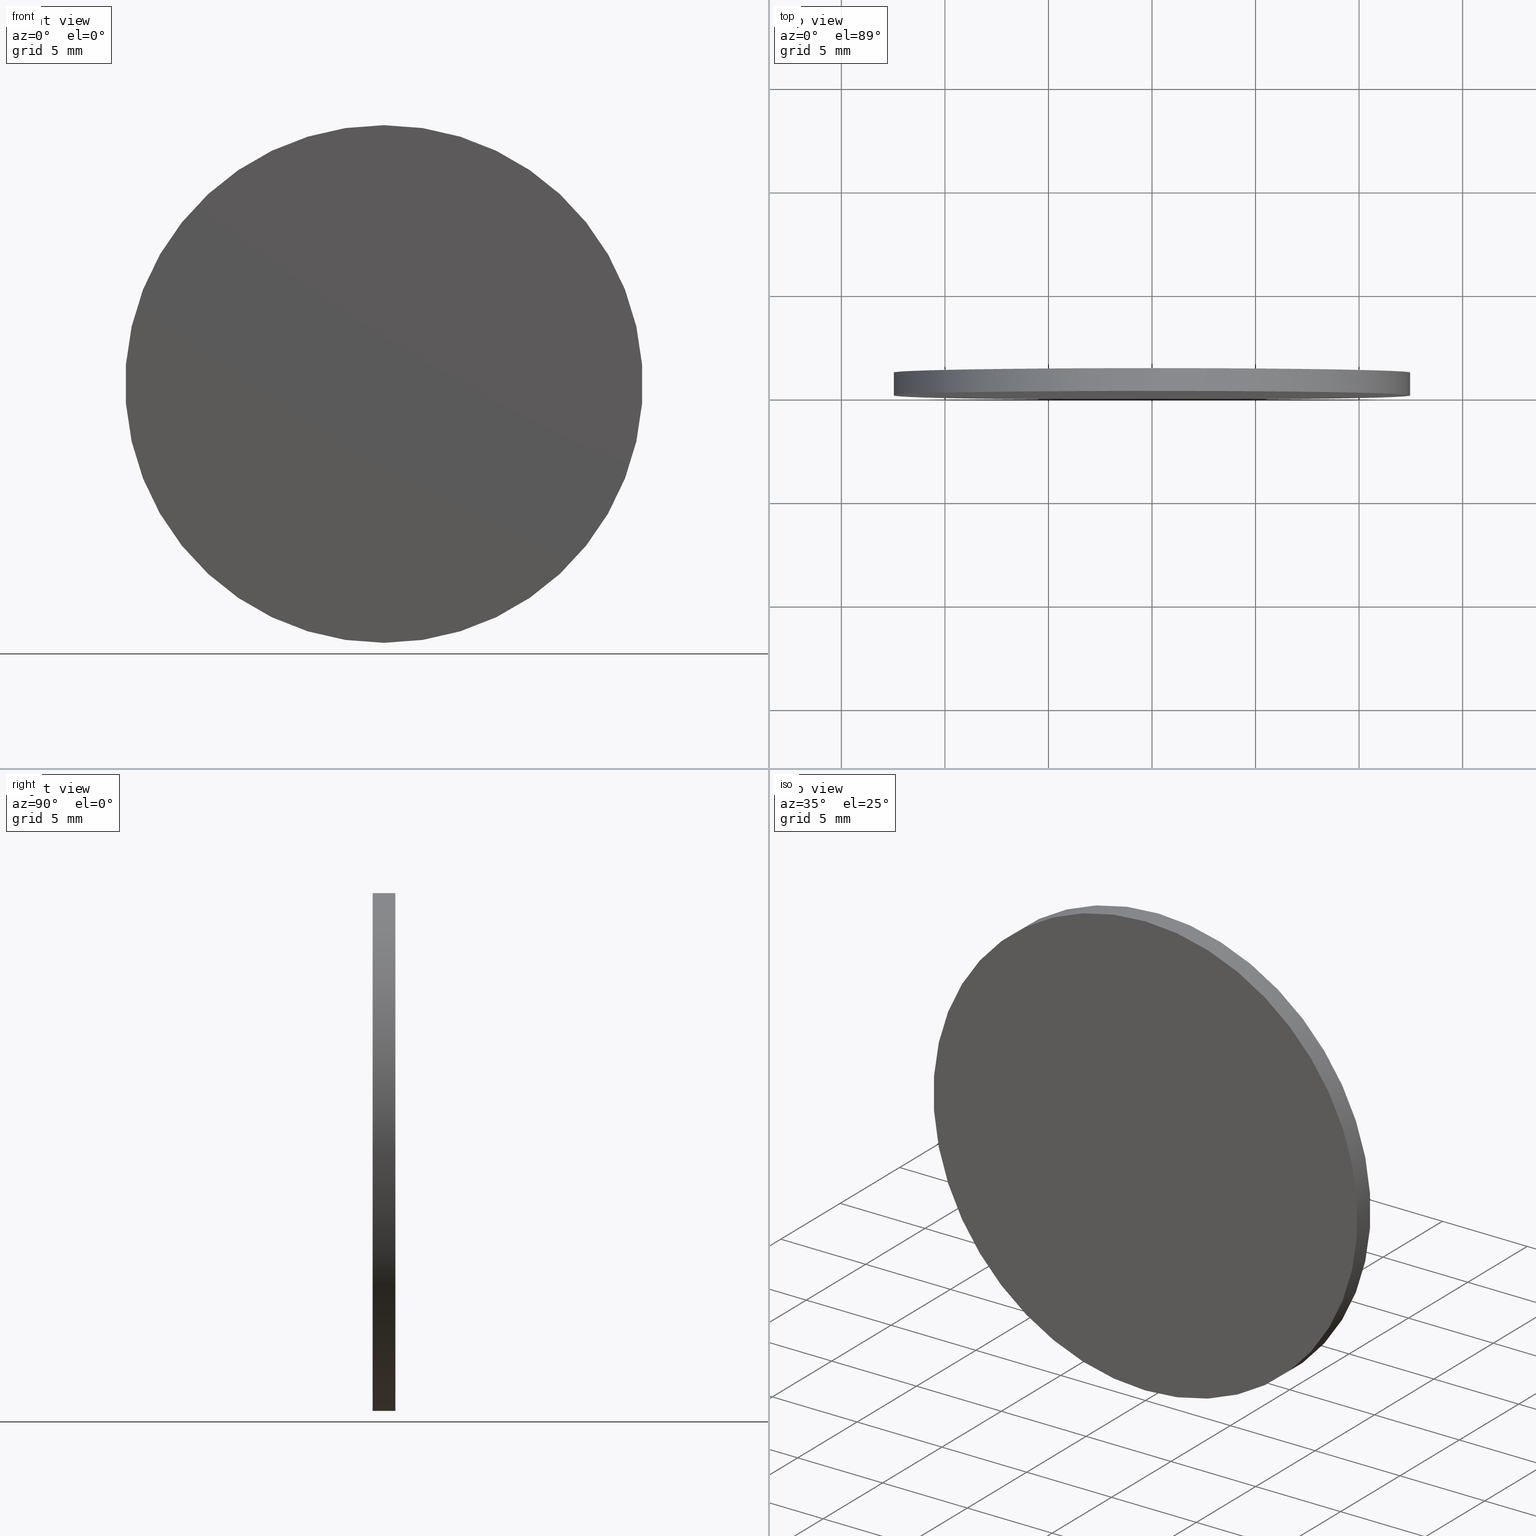
[diagram: canonical four-view strip — front | top / right | iso, engineering-drawing reading convention]
A machine part, canonical four-view strip (front | top / right | iso — engineering-drawing reading convention). The complete STEP part file that produces these views, byte-faithful:
ISO-10303-21;
HEADER;
FILE_DESCRIPTION (( 'STEP AP214' ),
    '1' );
FILE_NAME ('258502.STEP',
    '2019-08-06T08:49:14',
    ( 'user' ),
    ( '΢���й�' ),
    'SwSTEP 2.0',
    'SolidWorks 2016',
    '' );
FILE_SCHEMA (( 'AUTOMOTIVE_DESIGN' ));
ENDSEC;

DATA;
#1 = APPLICATION_CONTEXT ( 'automotive_design' ) ;
#2 = ORIENTED_EDGE ( 'NONE', *, *, #91, .F. ) ;
#3 = FACE_OUTER_BOUND ( 'NONE', #107, .T. ) ;
#4 = FACE_OUTER_BOUND ( 'NONE', #35, .T. ) ;
#5 = ADVANCED_BREP_SHAPE_REPRESENTATION ( '258502', ( #120, #77 ), #69 ) ;
#6 = DIRECTION ( 'NONE',  ( 0.0000000000000000000, 1.000000000000000000, 0.0000000000000000000 ) ) ;
#7 = CARTESIAN_POINT ( 'NONE',  ( 0.0000000000000000000, 1.100000000000000100, 0.0000000000000000000 ) ) ;
#8 = EDGE_CURVE ( 'NONE', #50, #49, #71, .T. ) ;
#9 = ORIENTED_EDGE ( 'NONE', *, *, #8, .F. ) ;
#10 = CARTESIAN_POINT ( 'NONE',  ( 0.0000000000000000000, 1.100000000000000100, -12.50000000000000000 ) ) ;
#11 = CARTESIAN_POINT ( 'NONE',  ( 0.0000000000000000000, 0.0000000000000000000, 0.0000000000000000000 ) ) ;
#12 =( LENGTH_UNIT ( ) NAMED_UNIT ( * ) SI_UNIT ( .MILLI., .METRE. ) );
#13 = DIRECTION ( 'NONE',  ( 0.0000000000000000000, 1.000000000000000000, 0.0000000000000000000 ) ) ;
#14 = PRODUCT_CONTEXT ( 'NONE', #67, 'mechanical' ) ;
#15 = EDGE_CURVE ( 'NONE', #39, #50, #122, .T. ) ;
#16 = PRODUCT ( '258502', '258502', '', ( #14 ) ) ;
#17 = PRESENTATION_STYLE_ASSIGNMENT (( #109 ) ) ;
#18 = CYLINDRICAL_SURFACE ( 'NONE', #63, 12.50000000000000000 ) ;
#19 = AXIS2_PLACEMENT_3D ( 'NONE', #93, #21, #84 ) ;
#20 = CLOSED_SHELL ( 'NONE', ( #76, #23, #117, #66 ) ) ;
#21 = DIRECTION ( 'NONE',  ( 0.0000000000000000000, 1.000000000000000000, 0.0000000000000000000 ) ) ;
#22 = DIRECTION ( 'NONE',  ( -0.0000000000000000000, -1.000000000000000000, -0.0000000000000000000 ) ) ;
#23 = ADVANCED_FACE ( 'NONE', ( #4 ), #83, .T. ) ;
#24 = CARTESIAN_POINT ( 'NONE',  ( 0.0000000000000000000, 0.0000000000000000000, 0.0000000000000000000 ) ) ;
#25 = DIRECTION ( 'NONE',  ( 0.0000000000000000000, 0.0000000000000000000, 1.000000000000000000 ) ) ;
#26 = PRODUCT_DEFINITION_FORMATION_WITH_SPECIFIED_SOURCE ( '�κ�', '', #16, .NOT_KNOWN. ) ;
#27 = STYLED_ITEM ( 'NONE', ( #17 ), #5 ) ;
#28 = CIRCLE ( 'NONE', #68, 12.50000000000000000 ) ;
#29 = ORIENTED_EDGE ( 'NONE', *, *, #15, .T. ) ;
#30 = AXIS2_PLACEMENT_3D ( 'NONE', #75, #44, #104 ) ;
#31 = LINE ( 'NONE', #10, #111 ) ;
#32 =( NAMED_UNIT ( * ) SI_UNIT ( $, .STERADIAN. ) SOLID_ANGLE_UNIT ( ) );
#33 = MECHANICAL_DESIGN_GEOMETRIC_PRESENTATION_REPRESENTATION (  '', ( #27 ), #99 ) ;
#34 = UNCERTAINTY_MEASURE_WITH_UNIT (LENGTH_MEASURE( 1.000000000000000100E-005 ), #48, 'distance_accuracy_value', 'NONE');
#35 = EDGE_LOOP ( 'NONE', ( #137, #2, #89, #116 ) ) ;
#36 = FILL_AREA_STYLE_COLOUR ( '', #100 ) ;
#37 = AXIS2_PLACEMENT_3D ( 'NONE', #11, #13, #129 ) ;
#38 =( NAMED_UNIT ( * ) SI_UNIT ( $, .STERADIAN. ) SOLID_ANGLE_UNIT ( ) );
#39 = VERTEX_POINT ( 'NONE', #95 ) ;
#40 = AXIS2_PLACEMENT_3D ( 'NONE', #87, #56, #118 ) ;
#41 = ORIENTED_EDGE ( 'NONE', *, *, #128, .T. ) ;
#42 =( NAMED_UNIT ( * ) PLANE_ANGLE_UNIT ( ) SI_UNIT ( $, .RADIAN. ) );
#43 = FILL_AREA_STYLE_COLOUR ( '', #108 ) ;
#44 = DIRECTION ( 'NONE',  ( 0.0000000000000000000, 1.000000000000000000, 0.0000000000000000000 ) ) ;
#45 = CARTESIAN_POINT ( 'NONE',  ( 1.530808498934191500E-015, 0.0000000000000000000, 12.50000000000000000 ) ) ;
#46 = PRESENTATION_LAYER_ASSIGNMENT (  '', '', ( #102 ) ) ;
#47 = ORIENTED_EDGE ( 'NONE', *, *, #8, .T. ) ;
#48 =( LENGTH_UNIT ( ) NAMED_UNIT ( * ) SI_UNIT ( .MILLI., .METRE. ) );
#49 = VERTEX_POINT ( 'NONE', #106 ) ;
#50 = VERTEX_POINT ( 'NONE', #45 ) ;
#51 = AXIS2_PLACEMENT_3D ( 'NONE', #115, #6, #73 ) ;
#52 = SHAPE_DEFINITION_REPRESENTATION ( #135, #5 ) ;
#53 = SURFACE_STYLE_USAGE ( .BOTH. , #127 ) ;
#54 = EDGE_CURVE ( 'NONE', #64, #49, #31, .T. ) ;
#55 = CARTESIAN_POINT ( 'NONE',  ( 0.0000000000000000000, 1.100000000000000100, -12.50000000000000000 ) ) ;
#56 = DIRECTION ( 'NONE',  ( -0.0000000000000000000, -1.000000000000000000, -0.0000000000000000000 ) ) ;
#57 = DIRECTION ( 'NONE',  ( 1.000000000000000000, 0.0000000000000000000, 0.0000000000000000000 ) ) ;
#58 = SURFACE_SIDE_STYLE ('',( #125 ) ) ;
#59 = ORIENTED_EDGE ( 'NONE', *, *, #128, .F. ) ;
#60 =( GEOMETRIC_REPRESENTATION_CONTEXT ( 3 ) GLOBAL_UNCERTAINTY_ASSIGNED_CONTEXT ( ( #70 ) ) GLOBAL_UNIT_ASSIGNED_CONTEXT ( ( #114, #42, #32 ) ) REPRESENTATION_CONTEXT ( 'NONE', 'WORKASPACE' ) );
#61 = FILL_AREA_STYLE ('',( #43 ) ) ;
#62 = DIRECTION ( 'NONE',  ( 0.0000000000000000000, 0.0000000000000000000, 1.000000000000000000 ) ) ;
#63 = AXIS2_PLACEMENT_3D ( 'NONE', #7, #85, #94 ) ;
#64 = VERTEX_POINT ( 'NONE', #55 ) ;
#65 = PLANE ( 'NONE',  #30 ) ;
#66 = ADVANCED_FACE ( 'NONE', ( #88 ), #65, .F. ) ;
#67 = APPLICATION_CONTEXT ( 'automotive_design' ) ;
#68 = AXIS2_PLACEMENT_3D ( 'NONE', #119, #140, #124 ) ;
#69 =( GEOMETRIC_REPRESENTATION_CONTEXT ( 3 ) GLOBAL_UNCERTAINTY_ASSIGNED_CONTEXT ( ( #130 ) ) GLOBAL_UNIT_ASSIGNED_CONTEXT ( ( #12, #131, #96 ) ) REPRESENTATION_CONTEXT ( 'NONE', 'WORKASPACE' ) );
#70 = UNCERTAINTY_MEASURE_WITH_UNIT (LENGTH_MEASURE( 1.000000000000000100E-005 ), #114, 'distance_accuracy_value', 'NONE');
#71 = CIRCLE ( 'NONE', #37, 12.50000000000000000 ) ;
#72 = EDGE_CURVE ( 'NONE', #49, #50, #90, .T. ) ;
#73 = DIRECTION ( 'NONE',  ( 0.0000000000000000000, -0.0000000000000000000, 1.000000000000000000 ) ) ;
#74 = CARTESIAN_POINT ( 'NONE',  ( 0.0000000000000000000, 0.0000000000000000000, 0.0000000000000000000 ) ) ;
#75 = CARTESIAN_POINT ( 'NONE',  ( 0.0000000000000000000, 0.0000000000000000000, 0.0000000000000000000 ) ) ;
#76 = ADVANCED_FACE ( 'NONE', ( #3 ), #18, .T. ) ;
#77 = AXIS2_PLACEMENT_3D ( 'NONE', #24, #25, #57 ) ;
#78 = APPLICATION_PROTOCOL_DEFINITION ( 'draft international standard', 'automotive_design', 1998, #1 ) ;
#79 = APPLICATION_PROTOCOL_DEFINITION ( 'draft international standard', 'automotive_design', 1998, #67 ) ;
#80 = ORIENTED_EDGE ( 'NONE', *, *, #91, .T. ) ;
#81 = PRODUCT_DEFINITION ( 'δ֪', '', #26, #134 ) ;
#82 = EDGE_LOOP ( 'NONE', ( #110, #9 ) ) ;
#83 = CYLINDRICAL_SURFACE ( 'NONE', #40, 12.50000000000000000 ) ;
#84 = DIRECTION ( 'NONE',  ( 0.0000000000000000000, 0.0000000000000000000, 1.000000000000000000 ) ) ;
#85 = DIRECTION ( 'NONE',  ( -0.0000000000000000000, -1.000000000000000000, -0.0000000000000000000 ) ) ;
#86 = DIRECTION ( 'NONE',  ( -0.0000000000000000000, -1.000000000000000000, -0.0000000000000000000 ) ) ;
#87 = CARTESIAN_POINT ( 'NONE',  ( 0.0000000000000000000, 1.100000000000000100, 0.0000000000000000000 ) ) ;
#88 = FACE_OUTER_BOUND ( 'NONE', #82, .T. ) ;
#89 = ORIENTED_EDGE ( 'NONE', *, *, #54, .T. ) ;
#90 = CIRCLE ( 'NONE', #126, 12.50000000000000000 ) ;
#91 = EDGE_CURVE ( 'NONE', #64, #39, #113, .T. ) ;
#92 = ORIENTED_EDGE ( 'NONE', *, *, #54, .F. ) ;
#93 = CARTESIAN_POINT ( 'NONE',  ( 0.0000000000000000000, 1.100000000000000100, 0.0000000000000000000 ) ) ;
#94 = DIRECTION ( 'NONE',  ( 0.0000000000000000000, 0.0000000000000000000, -1.000000000000000000 ) ) ;
#95 = CARTESIAN_POINT ( 'NONE',  ( 1.530808498934191500E-015, 1.100000000000000100, 12.50000000000000000 ) ) ;
#96 =( NAMED_UNIT ( * ) SI_UNIT ( $, .STERADIAN. ) SOLID_ANGLE_UNIT ( ) );
#97 =( NAMED_UNIT ( * ) PLANE_ANGLE_UNIT ( ) SI_UNIT ( $, .RADIAN. ) );
#98 = EDGE_LOOP ( 'NONE', ( #80, #41 ) ) ;
#99 =( GEOMETRIC_REPRESENTATION_CONTEXT ( 3 ) GLOBAL_UNCERTAINTY_ASSIGNED_CONTEXT ( ( #34 ) ) GLOBAL_UNIT_ASSIGNED_CONTEXT ( ( #48, #97, #38 ) ) REPRESENTATION_CONTEXT ( 'NONE', 'WORKASPACE' ) );
#100 = COLOUR_RGB ( '',1.000000000000000000, 1.000000000000000000, 1.000000000000000000 ) ;
#101 = PRESENTATION_STYLE_ASSIGNMENT (( #53 ) ) ;
#102 = STYLED_ITEM ( 'NONE', ( #101 ), #120 ) ;
#103 = PLANE ( 'NONE',  #51 ) ;
#104 = DIRECTION ( 'NONE',  ( 0.0000000000000000000, -0.0000000000000000000, 1.000000000000000000 ) ) ;
#105 = SURFACE_STYLE_FILL_AREA ( #61 ) ;
#106 = CARTESIAN_POINT ( 'NONE',  ( 0.0000000000000000000, 0.0000000000000000000, -12.50000000000000000 ) ) ;
#107 = EDGE_LOOP ( 'NONE', ( #59, #29, #47, #92 ) ) ;
#108 = COLOUR_RGB ( '',1.000000000000000000, 1.000000000000000000, 1.000000000000000000 ) ;
#109 = SURFACE_STYLE_USAGE ( .BOTH. , #58 ) ;
#110 = ORIENTED_EDGE ( 'NONE', *, *, #72, .F. ) ;
#111 = VECTOR ( 'NONE', #22, 1000.000000000000000 ) ;
#112 = PRODUCT_RELATED_PRODUCT_CATEGORY ( 'part', '', ( #16 ) ) ;
#113 = CIRCLE ( 'NONE', #19, 12.50000000000000000 ) ;
#114 =( LENGTH_UNIT ( ) NAMED_UNIT ( * ) SI_UNIT ( .MILLI., .METRE. ) );
#115 = CARTESIAN_POINT ( 'NONE',  ( 0.0000000000000000000, 1.100000000000000100, 0.0000000000000000000 ) ) ;
#116 = ORIENTED_EDGE ( 'NONE', *, *, #72, .T. ) ;
#117 = ADVANCED_FACE ( 'NONE', ( #139 ), #103, .T. ) ;
#118 = DIRECTION ( 'NONE',  ( 0.0000000000000000000, 0.0000000000000000000, -1.000000000000000000 ) ) ;
#119 = CARTESIAN_POINT ( 'NONE',  ( 0.0000000000000000000, 1.100000000000000100, 0.0000000000000000000 ) ) ;
#120 = MANIFOLD_SOLID_BREP ( '͹̨-����1', #20 ) ;
#121 = PRESENTATION_LAYER_ASSIGNMENT (  '', '', ( #27 ) ) ;
#122 = LINE ( 'NONE', #132, #133 ) ;
#123 = FILL_AREA_STYLE ('',( #36 ) ) ;
#124 = DIRECTION ( 'NONE',  ( 0.0000000000000000000, 0.0000000000000000000, 1.000000000000000000 ) ) ;
#125 = SURFACE_STYLE_FILL_AREA ( #123 ) ;
#126 = AXIS2_PLACEMENT_3D ( 'NONE', #74, #138, #62 ) ;
#127 = SURFACE_SIDE_STYLE ('',( #105 ) ) ;
#128 = EDGE_CURVE ( 'NONE', #39, #64, #28, .T. ) ;
#129 = DIRECTION ( 'NONE',  ( 0.0000000000000000000, 0.0000000000000000000, 1.000000000000000000 ) ) ;
#130 = UNCERTAINTY_MEASURE_WITH_UNIT (LENGTH_MEASURE( 1.000000000000000100E-005 ), #12, 'distance_accuracy_value', 'NONE');
#131 =( NAMED_UNIT ( * ) PLANE_ANGLE_UNIT ( ) SI_UNIT ( $, .RADIAN. ) );
#132 = CARTESIAN_POINT ( 'NONE',  ( 1.530808498934191500E-015, 1.100000000000000100, 12.50000000000000000 ) ) ;
#133 = VECTOR ( 'NONE', #86, 1000.000000000000000 ) ;
#134 = PRODUCT_DEFINITION_CONTEXT ( 'detailed design', #1, 'design' ) ;
#135 = PRODUCT_DEFINITION_SHAPE ( 'NONE', 'NONE',  #81 ) ;
#136 = MECHANICAL_DESIGN_GEOMETRIC_PRESENTATION_REPRESENTATION (  '', ( #102 ), #60 ) ;
#137 = ORIENTED_EDGE ( 'NONE', *, *, #15, .F. ) ;
#138 = DIRECTION ( 'NONE',  ( 0.0000000000000000000, 1.000000000000000000, 0.0000000000000000000 ) ) ;
#139 = FACE_OUTER_BOUND ( 'NONE', #98, .T. ) ;
#140 = DIRECTION ( 'NONE',  ( 0.0000000000000000000, 1.000000000000000000, 0.0000000000000000000 ) ) ;
ENDSEC;
END-ISO-10303-21;
